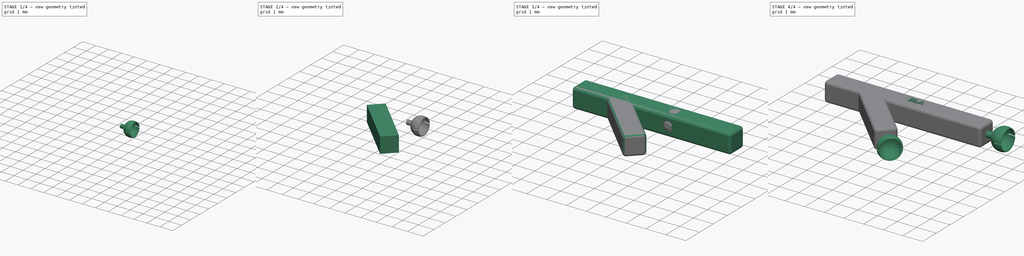
[diagram: build sequence overview — one tinted view per stage of 4, left to right]
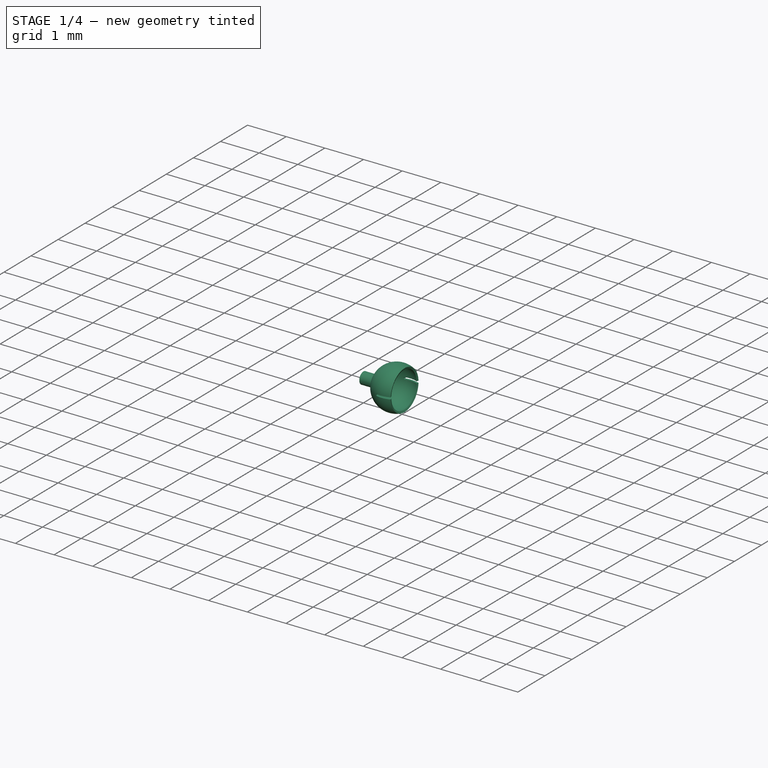
[diagram: stage 1 of 4 — iso view after this stage's code; geometry added in this stage tinted green]
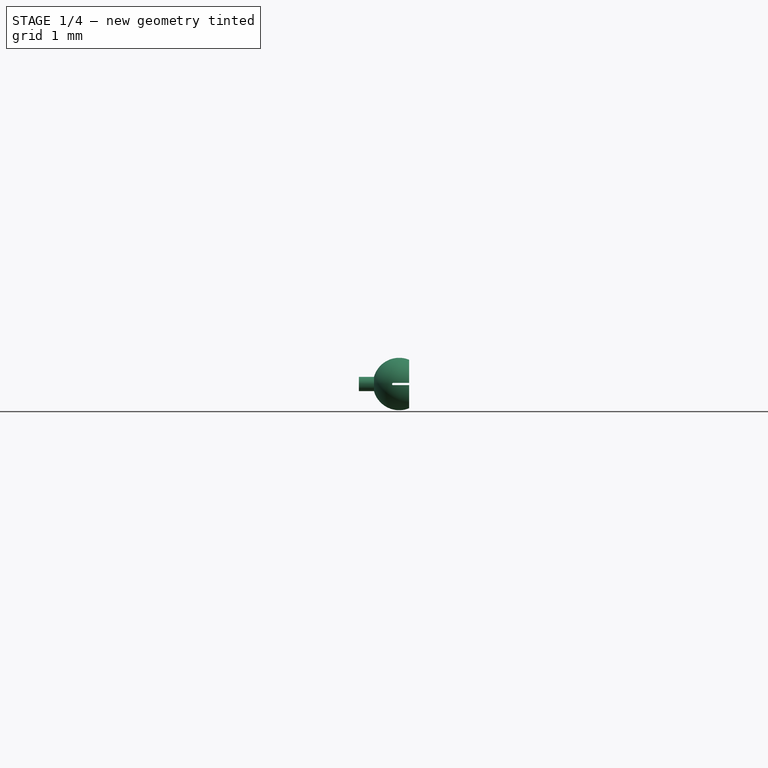
[diagram: stage 1 of 4 — front view after this stage's code; geometry added in this stage tinted green]
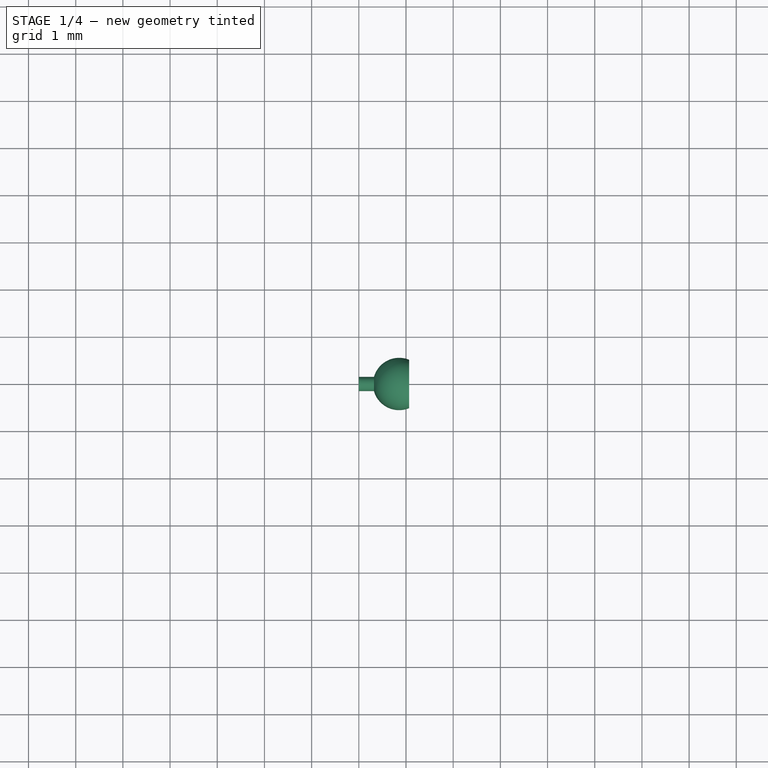
[diagram: stage 1 of 4 — top view after this stage's code; geometry added in this stage tinted green]
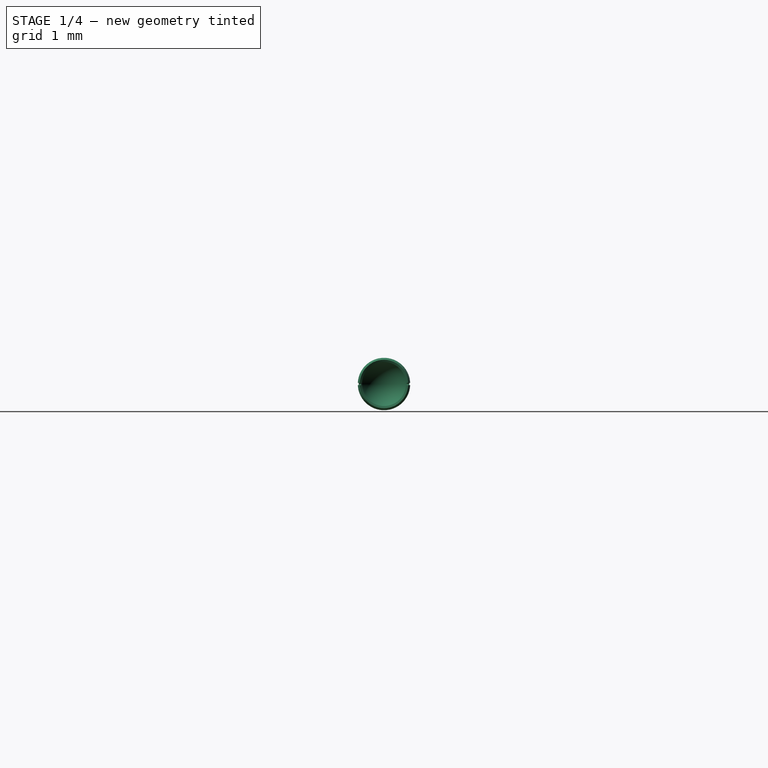
[diagram: stage 1 of 4 — right view after this stage's code; geometry added in this stage tinted green]
FCSTD DOCUMENT  (FreeCAD 0.20R29177 (Git))
Label: sla_new
License: All rights reserved
LicenseURL: http://en.wikipedia.org/wiki/All_rights_reserved
objects: PartDesign::Body×6, Sketcher::SketchObject×5, PartDesign::Pad×4, PartDesign::FeatureBase×3, PartDesign::Fillet×2, Spreadsheet::Sheet×1, PartDesign::Line×1, PartDesign::Revolution×1, PartDesign::Pocket×1, Part::MultiFuse×1, Part::Part2DObjectPython×1
note: 33 computed .brp shape members not serialized (recipe doc carries the construction recipe); baked Part::Feature solids carry a one-line shape summary decoded from their .brp

FEATURE [PartDesign::Body] Body001  label="AngledBeamBody"
  Group = -> [Sketch001,Pad001,Fillet001]
  Origin = -> Origin001
  Tip = -> Fillet001
FEATURE [Sketcher::SketchObject] Sketch002  label="BallJointConnSketch"
  FullyConstrained = true
  MapMode = 5
  Placement = pos=(0,0,0) rot=(0.57735,0.57735,0.57735;2.0944rad)
  Support = -> [YZ_Plane002]
  expr: Constraints[1] = Spreadsheet.BallJointCupConnDiam
  sketch-geometry (1):
    g0: Circle CenterX=0 CenterY=0 CenterZ=0 NormalX=0 NormalY=0 NormalZ=1 AngleXU=0 Radius=0.15
  constraints (2):
    c: Coincident(g0,g-1)
    c: Diameter(g0) = 0.3
FEATURE [Sketcher::SketchObject] Sketch003  label="BallJointCupSketch"
  FullyConstrained = true
  MapMode = 5
  Placement = pos=(0,0,0) rot=(1,0,0;1.5708rad)
  Support = -> [XZ_Plane002]
  expr: Constraints[10] = Spreadsheet.BallJointCupInnerDiam
  expr: Constraints[20] = Spreadsheet.BallJointCupOuterDiam * 0.5
  expr: Constraints[21] = 0.5 * Spreadsheet.BallJointCupCutoutAngle
  expr: Constraints[4] = Spreadsheet.BallJointCupConnLength
  expr: Constraints[5] = 0.5 * Spreadsheet.BallJointCupOuterDiam
  sketch-geometry (8):
    g0: LineSegment StartX=0 StartY=3e-16 StartZ=0 EndX=0.3 EndY=3e-16 EndZ=0
    g1: LineSegment StartX=0.3 StartY=3e-16 StartZ=0 EndX=0.855 EndY=3e-16 EndZ=0
    g2: ArcOfCircle CenterX=0.855 CenterY=3e-16 CenterZ=0 NormalX=0 NormalY=0 NormalZ=1 AngleXU=0 Radius=0.555 StartAngle=1.1781 EndAngle=3.14159
    g3: ArcOfCircle CenterX=0.855 CenterY=3e-16 CenterZ=0 NormalX=0 NormalY=0 NormalZ=1 AngleXU=0 Radius=0.505 StartAngle=1.1781 EndAngle=3.14159
    g4: LineSegment StartX=1.04826 StartY=0.466559 StartZ=0 EndX=1.06739 EndY=0.512753 EndZ=0
    g5: LineSegment StartX=0.3 StartY=3e-16 StartZ=0 EndX=0.35 EndY=4e-16 EndZ=0
    g6: LineSegment StartX=0.855 StartY=3e-16 StartZ=0 EndX=1.04826 EndY=0.466559 EndZ=0
    g7: LineSegment StartX=0.855 StartY=3e-16 StartZ=0 EndX=1.41 EndY=3e-16 EndZ=0
  constraints (22):
    c: Horizontal(g0)
    c: Coincident(g0,g1)
    c: Horizontal(g1)
    c: Coincident(g0,g-1)
    c: DistanceX(g0,g0) = 0.3
    c: DistanceX(g1,g1) = 0.555
    c: Coincident(g2,g1)
    c: Coincident(g2,g0)
    c: Coincident(g3,g2)
    c: PointOnObject(g3,g1)
    c: Diameter(g3) = 1.01
    c: Coincident(g5,g2)
    c: Coincident(g5,g3)
    c: Coincident(g4,g3)
    c: Coincident(g2,g4)
    c: Coincident(g2,g6)
    c: Coincident(g6,g3)
    c: Parallel(g6,g4)
    c: Horizontal(g7)
    c: Coincident(g7,g2)
    c: DistanceX(g7,g7) = 0.555
    c: Angle(g7,g6) = 1.1781
FEATURE [PartDesign::Pad] Pad002  label="BallJointCupConnPad"
  Direction = (1,-2e-16,3e-16)
  Length = 0.325
  Length2 = 10
  Placement = pos=(0,0,0) rot=(0.57735,0.57735,0.57735;2.0944rad)
  Profile = -> Sketch002
  ReferenceAxis = -> Sketch002 [N_Axis]
  Type = 0
  expr: Length = Spreadsheet.BallJointCupConnPadLength
FEATURE [PartDesign::Line] DatumLine  label="BallJointCupRevolveDatumLine"
  AttacherType = Attacher::AttachEngineLine
  Length = 20
  MapMode = 29
  Placement = pos=(0,0,-1e-16) rot=(0.57735,0.57735,0.57735;2.0944rad)
  ResizeMode = 0
  Support = -> [Sketch003]
FEATURE [PartDesign::Revolution] Revolution  label="BallJointCupRevolution"
  Angle = 360
  Axis = (1,0,0)
  Base = (0,0,0)
  BaseFeature = -> Pad002
  Placement = pos=(0,0,0) rot=(0.57735,0.57735,0.57735;2.0944rad)
  Profile = -> Sketch003
  ReferenceAxis = -> X_Axis002
  Reversed = true
FEATURE [Sketcher::SketchObject] Sketch004  label="BallJointCupSlitSketch"
  FullyConstrained = true
  MapMode = 5
  Placement = pos=(0,0,0) rot=(1,0,0;1.5708rad)
  Support = -> [XZ_Plane002]
  expr: Constraints[30] = Spreadsheet.BallJointCupSlitWidth
  expr: Constraints[31] = Spreadsheet.BallJointCupOuterDiam
  expr: Constraints[34] = Spreadsheet.BallJointCupSlitDepth
  expr: Constraints[4] = Spreadsheet.BallJointCupConnLength
  expr: Constraints[5] = Spreadsheet.BallJointCupOuterDiam * 0.5
  sketch-geometry (13):
    g0: LineSegment StartX=0 StartY=0 StartZ=0 EndX=0.3 EndY=0 EndZ=0
    g1: LineSegment StartX=0.3 StartY=0 StartZ=0 EndX=0.855 EndY=0 EndZ=0
    g2: LineSegment StartX=0.855 StartY=0.025 StartZ=0 EndX=1.965 EndY=0.025 EndZ=0
    g3: LineSegment StartX=1.965 StartY=0.025 StartZ=0 EndX=1.965 EndY=-0.025 EndZ=0
    g4: LineSegment StartX=1.965 StartY=-0.025 StartZ=0 EndX=0.855 EndY=-0.025 EndZ=0
    g5: LineSegment StartX=0.73 StartY=0.025 StartZ=0 EndX=0.855 EndY=0.025 EndZ=0
    g6: LineSegment StartX=0.73 StartY=-0.025 StartZ=0 EndX=0.855 EndY=-0.025 EndZ=0
    g7: LineSegment StartX=0.855 StartY=0.025 StartZ=0 EndX=0.855 EndY=0 EndZ=0
    g8: LineSegment StartX=0.855 StartY=0 StartZ=0 EndX=0.855 EndY=-0.025 EndZ=0
    g9: LineSegment StartX=0.73 StartY=0.025 StartZ=0 EndX=0.73 EndY=5.171e-13 EndZ=0
    g10: LineSegment StartX=0.73 StartY=5.171e-13 StartZ=0 EndX=0.73 EndY=-0.025 EndZ=0
    g11: ArcOfCircle CenterX=0.73 CenterY=5.171e-13 CenterZ=0 NormalX=0 NormalY=0 NormalZ=1 AngleXU=0 Radius=0.025 StartAngle=1.5708 EndAngle=4.71239
    g12: GeomPoint X=0.755 Y=0 Z=0
  constraints (35):
    c: Horizontal(g0)
    c: Horizontal(g1)
    c: Coincident(g0,g-1)
    c: Coincident(g0,g1)
    c: DistanceX(g0,g0) = 0.3
    c: DistanceX(g1,g1) = 0.555
    c: Horizontal(g2)
    c: Coincident(g2,g3)
    c: Vertical(g3)
    c: Coincident(g3,g4)
    c: Horizontal(g4)
    c: Horizontal(g5)
    c: Horizontal(g6)
    c: Coincident(g5,g2)
    c: Coincident(g6,g4)
    c: Vertical(g7)
    c: Coincident(g7,g8)
    c: Vertical(g8)
    c: Equal(g7,g8)
    c: Coincident(g8,g4)
    c: Coincident(g7,g1)
    c: Coincident(g7,g2)
    c: Vertical(g9)
    c: Coincident(g9,g10)
    c: Vertical(g10)
    c: Coincident(g10,g6)
    c: Coincident(g9,g5)
    c: Coincident(g11,g9)
    c: Coincident(g11,g5)
    c: Coincident(g11,g6)
    c: DistanceY(g3,g3) = 0.05
    c: DistanceX(g2,g2) = 1.11
    c: PointOnObject(g12,g1)
    c: PointOnObject(g12,g11)
    c: DistanceX(g12,g1) = 0.1
FEATURE [PartDesign::Pocket] Pocket  label="BallJointCupSlitPocket"
  BaseFeature = -> Revolution
  Direction = (0,1,2e-16)
  Length = 5
  Length2 = 5
  Midplane = true
  Placement = pos=(0,0,0) rot=(0.57735,0.57735,0.57735;2.0944rad)
  Profile = -> Sketch004
  ReferenceAxis = -> Sketch004 [N_Axis]
  Type = 1
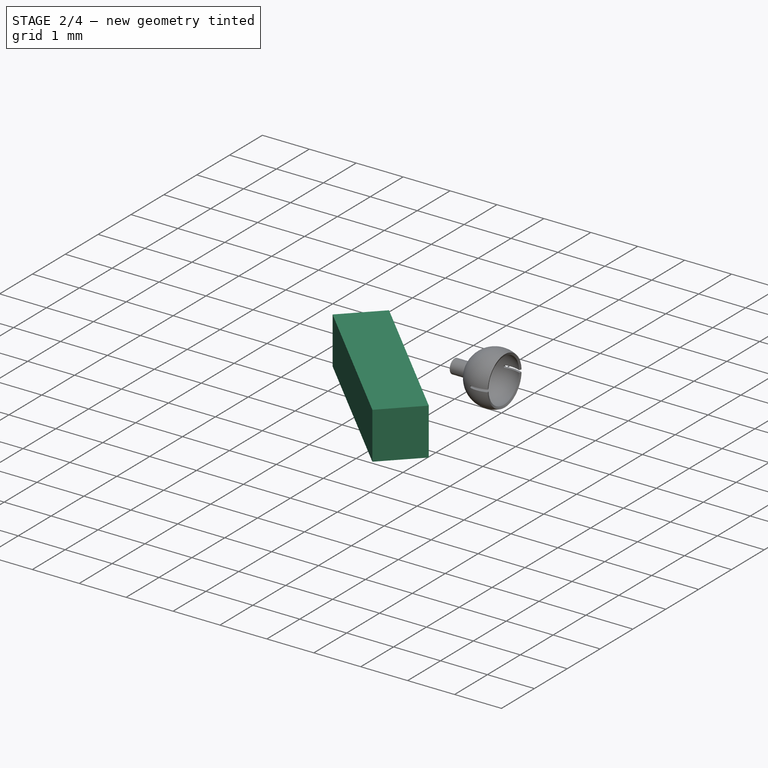
[diagram: stage 2 of 4 — iso view after this stage's code; geometry added in this stage tinted green]
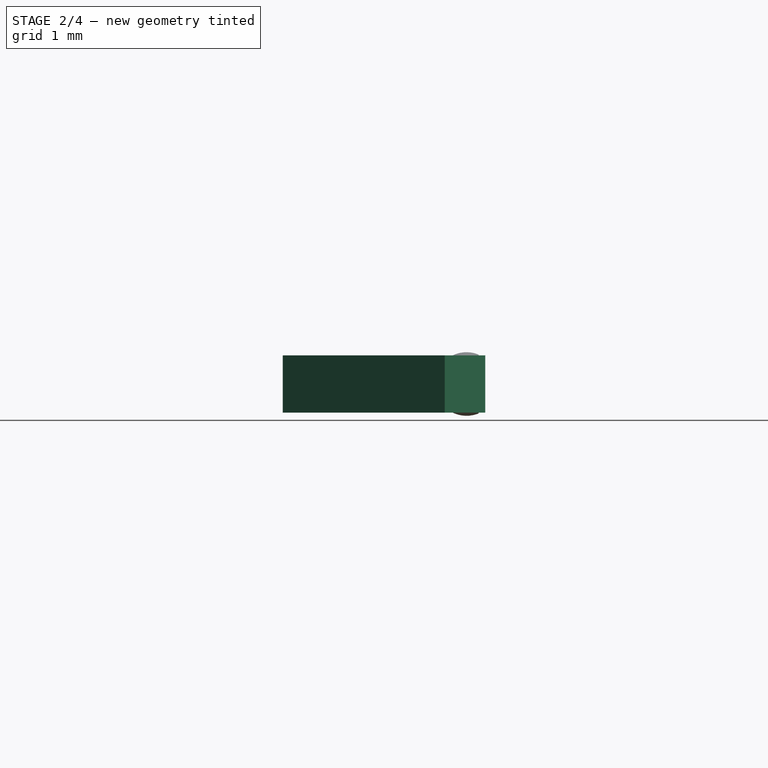
[diagram: stage 2 of 4 — front view after this stage's code; geometry added in this stage tinted green]
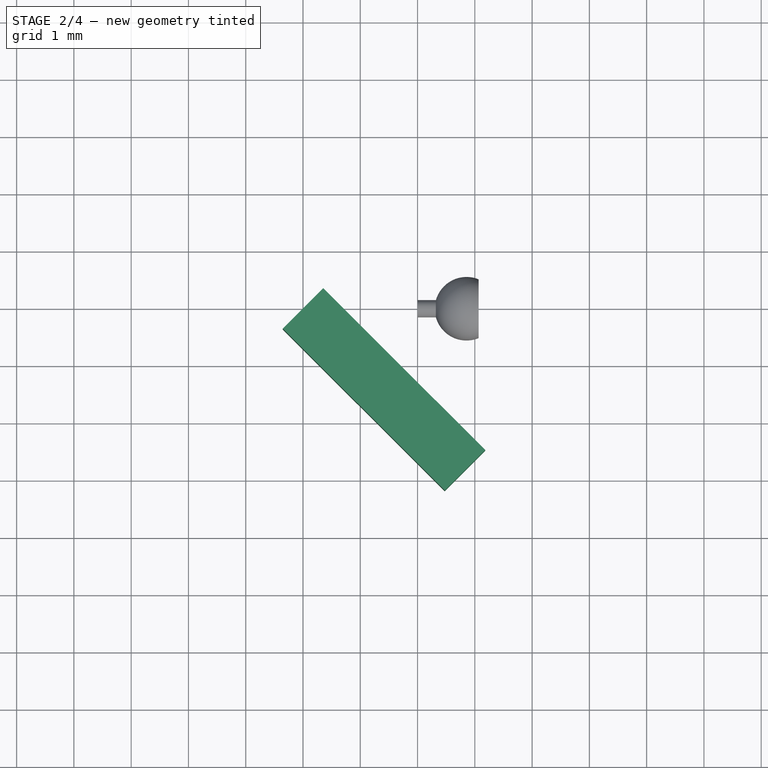
[diagram: stage 2 of 4 — top view after this stage's code; geometry added in this stage tinted green]
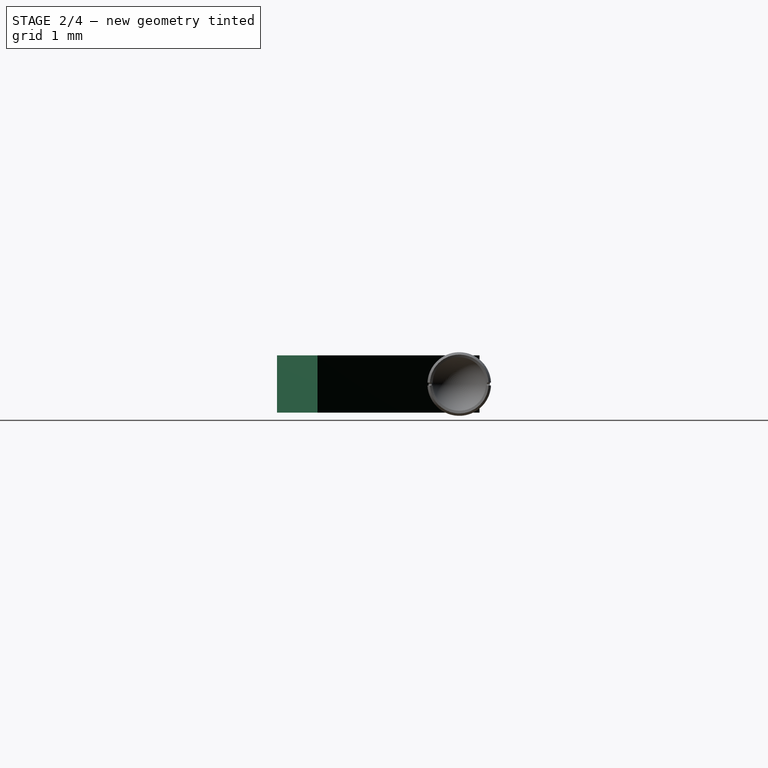
[diagram: stage 2 of 4 — right view after this stage's code; geometry added in this stage tinted green]
FEATURE [PartDesign::Body] Body  label="MainBeamBody"
  Group = -> [Sketch,Pad,Fillet]
  Origin = -> Origin
  Tip = -> Fillet
FEATURE [Sketcher::SketchObject] Sketch001  label="AngledBeamSketch"
  FullyConstrained = true
  MapMode = 5
  Support = -> [XY_Plane001]
  expr: Constraints[19] = Spreadsheet.AngledBeamOffsetAngle
  expr: Constraints[2] = Spreadsheet.AngledBeamOffsetX
  expr: Constraints[7] = Spreadsheet.BeamWidth
  expr: Constraints[8] = Spreadsheet.AngledBeamLength
  sketch-geometry (7):
    g0: LineSegment StartX=-2 StartY=0 StartZ=0 EndX=0 EndY=0 EndZ=0
    g1: LineSegment StartX=1.18198 StartY=-2.47487 StartZ=0 EndX=-1.64645 EndY=0.353553 EndZ=0
    g2: LineSegment StartX=-2.35355 StartY=-0.353553 StartZ=0 EndX=0.474874 EndY=-3.18198 EndZ=0
    g3: LineSegment StartX=0.474874 StartY=-3.18198 StartZ=0 EndX=1.18198 EndY=-2.47487 EndZ=0
    g4: LineSegment StartX=-2.35355 StartY=-0.353553 StartZ=0 EndX=-2 EndY=0 EndZ=0
    g5: LineSegment StartX=-2 StartY=0 StartZ=0 EndX=-1.64645 EndY=0.353553 EndZ=0
    g6: LineSegment StartX=-2 StartY=0 StartZ=0 EndX=0.828427 EndY=-2.82843 EndZ=0
  constraints (20):
    c: Horizontal(g0)
    c: Coincident(g0,g-1)
    c: DistanceX(g0,g0) = 2
    c: Coincident(g2,g3)
    c: Coincident(g1,g3)
    c: Parallel(g2,g1)
    c: Perpendicular(g3,g1)
    c: Distance(g3) = 1
    c: Distance(g2) = 4
    c: Coincident(g4,g5)
    c: Equal(g4,g5)
    c: Parallel(g4,g5)
    c: Coincident(g5,g1)
    c: Coincident(g4,g2)
    c: Perpendicular(g1,g5)
    c: Coincident(g0,g4)
    c: Coincident(g4,g6)
    c: PointOnObject(g6,g3)
    c: Parallel(g6,g1)
    c: Angle(g6,g0) = 0.785398
FEATURE [PartDesign::Pad] Pad001  label="AngledBeamPad"
  Direction = (0,0,1)
  Length = 1
  Length2 = 10
  Midplane = true
  Profile = -> Sketch001
  ReferenceAxis = -> Sketch001 [N_Axis]
  Type = 0
  expr: Length = Spreadsheet.BeamHeight
FEATURE [PartDesign::Body] Body002  label="BallJointCupRefBody"
  Group = -> [Sketch002,Sketch003,Pad002,DatumLine,Revolution,Sketch004,Pocket]
  Origin = -> Origin002
  Tip = -> Pocket
FEATURE [PartDesign::FeatureBase] Clone
  BaseFeature = -> Body002
FEATURE [PartDesign::Body] Body003  label="BallJointCupClone1Body"
  BaseFeature = -> Body002
  Group = -> [Clone]
  Origin = -> Origin003
  Placement = pos=(4,0,0) rot=(0,0,1;0rad)
  Tip = -> Clone
  expr: .Placement.Base.x = Spreadsheet.BallJointCupClone1OffsetX
FEATURE [PartDesign::FeatureBase] Clone001
  BaseFeature = -> Body002
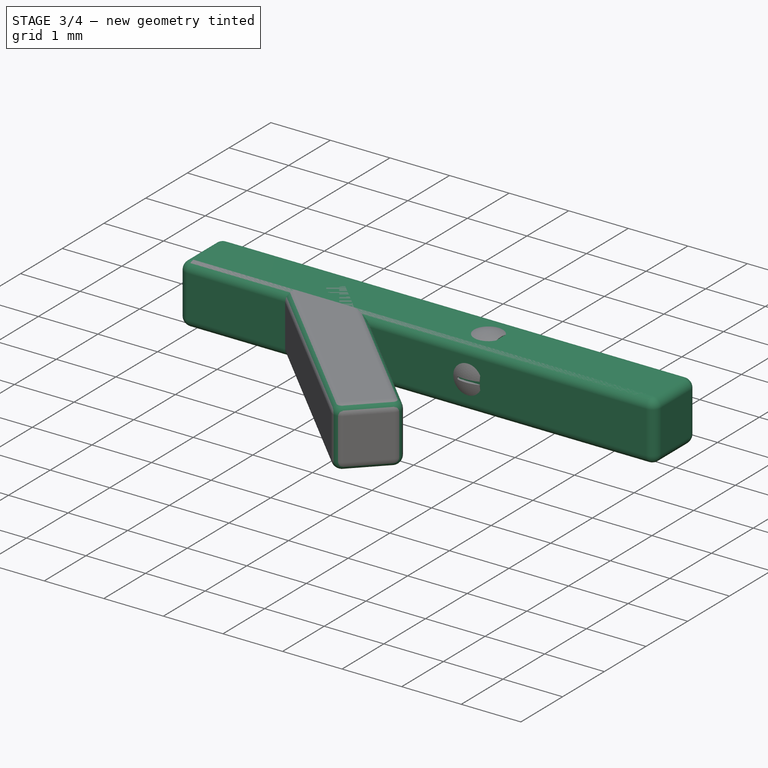
[diagram: stage 3 of 4 — iso view after this stage's code; geometry added in this stage tinted green]
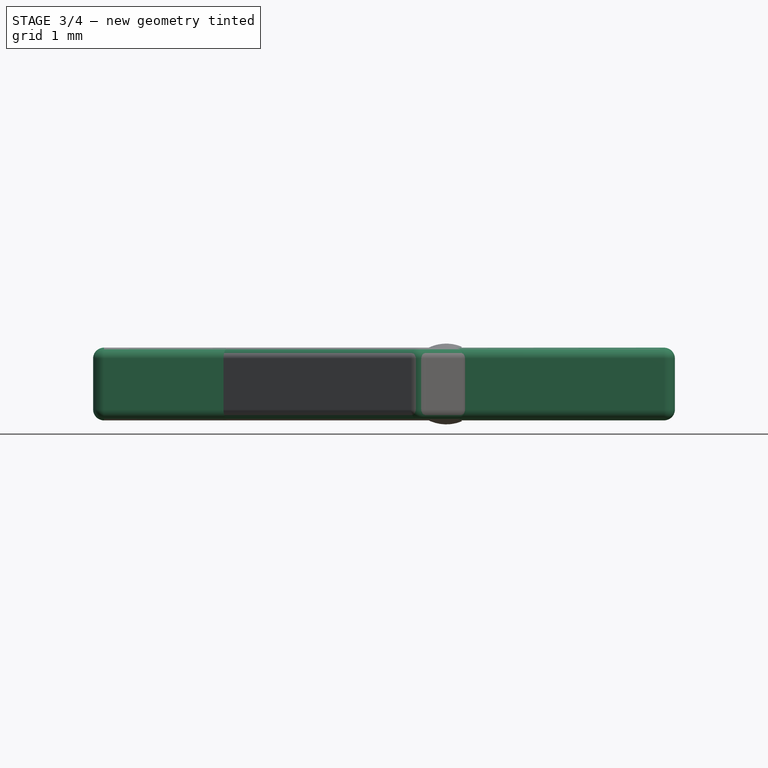
[diagram: stage 3 of 4 — front view after this stage's code; geometry added in this stage tinted green]
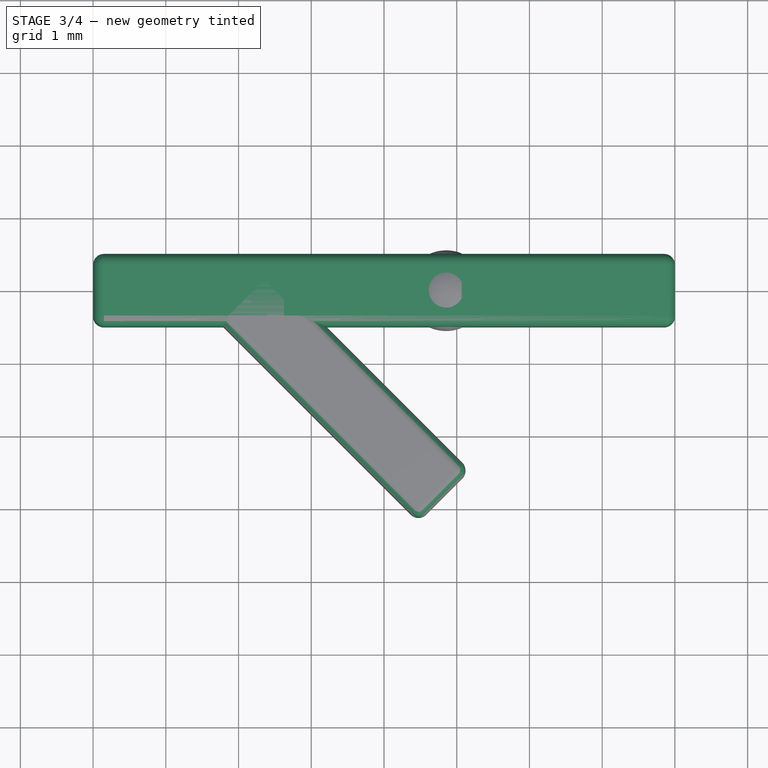
[diagram: stage 3 of 4 — top view after this stage's code; geometry added in this stage tinted green]
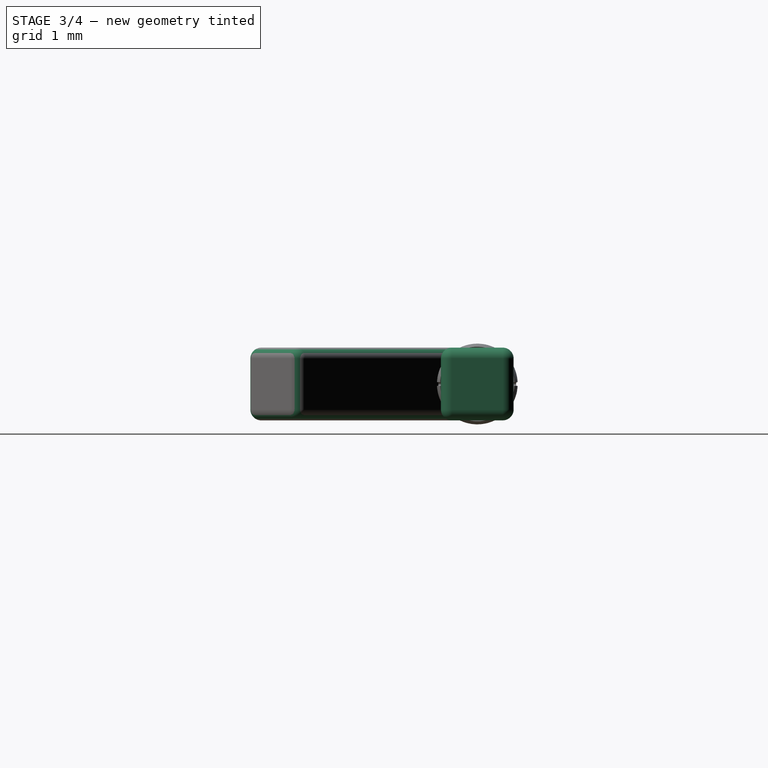
[diagram: stage 3 of 4 — right view after this stage's code; geometry added in this stage tinted green]
FEATURE [Spreadsheet::Sheet] Spreadsheet
  cells = A2=Design Parameters; A3=RefLength; B3(RefLength)==1mm; A4=BeamWidth; B4(BeamWidth)==1 * RefLength; A5=BeamHeight; B5(BeamHeight)==1 * RefLength; A6=MainBeamLength; B6(MainBeamLength)==8 * RefLength; A7=AngledBeamLength; B7(AngledBeamLength)==4 * RefLength; A8=AngledBeamOffsetX; B8(AngledBeamOffsetX)==0.25 * MainBeamLength; A9=AngledBeamOffsetAngle; B9(AngledBeamOffsetAngle)==45deg; A10=EdgeFilletRadius; B10(EdgeFilletRadius)==0.15 * RefLength; A11=BallJointDiam; B11(BallJointDiam)==1 * RefLength; A12=BallJointDiamMargin; B12(BallJointDiamMargin)==0.005 * BallJointDiam; A13=BallJointCupThickness; B13(BallJointCupThickness)==0.05 * RefLength; A14=BallJointCupInnerDiam; B14(BallJointCupInnerDiam)==BallJointDiam + 2 * BallJointDiamMargin; A15=BallJointCupOuterDiam; B15(BallJointCupOuterDiam)==BallJointCupInnerDiam + 2 * BallJointCupThickness; A16=BallJointCupConnLength; B16(BallJointCupConnLength)==0.3 * RefLength; A17=BallJointCupConnDiam; B17(BallJointCupConnDiam)==0.3 * RefLength; A18=BallJointCupConnPadMargin; B18(BallJointCupConnPadMargin)==0.1 * RefLength; A19=BallJointCupConnPadLength; B19(BallJointCupConnPadLength)==BallJointCupConnLength + 0.5 * BallJointCupThickness; A20=BallJointCupCutoutAngle; B20(BallJointCupCutoutAngle)==135deg; A21=BallJointCupSlitWidth; B21(BallJointCupSlitWidth)==0.05 * RefLength; A22=BallJointCupSlitDepth; B22(BallJointCupSlitDepth)==0.1 * RefLength; C22=Depth past midline; A23=BallJointCupClone1OffsetX; B23(BallJointCupClone1OffsetX)==0.5 * MainBeamLength; A24=BallJointCupClone2OffsetX; B24(BallJointCupClone2OffsetX)==-AngledBeamOffsetX + AngledBeamLength * cos(AngledBeamOffsetAngle); A25=BallJointCupClone2OffsetY; B25(BallJointCupClone2OffsetY)==-AngledBeamLength * sin(AngledBeamOffsetAngle); A26=LabelSize; B26(LabelSize)==0.15 * RefLength; A27=LabelString; B27(LabelString)=SLA; A28=LabelPadHeight; B28(LabelPadHeight)==0.05 * RefLength; A29=LabelYPos; B29(LabelYPos)==-0.1 * BeamWidth
FEATURE [Sketcher::SketchObject] Sketch  label="MainBeamSketch"
  FullyConstrained = true
  MapMode = 5
  Support = -> [XY_Plane]
  expr: Constraints[10] = Spreadsheet.BeamWidth
  expr: Constraints[9] = Spreadsheet.MainBeamLength
  sketch-geometry (4):
    g0: LineSegment StartX=-4 StartY=0.5 StartZ=0 EndX=4 EndY=0.5 EndZ=0
    g1: LineSegment StartX=4 StartY=0.5 StartZ=0 EndX=4 EndY=-0.5 EndZ=0
    g2: LineSegment StartX=4 StartY=-0.5 StartZ=0 EndX=-4 EndY=-0.5 EndZ=0
    g3: LineSegment StartX=-4 StartY=-0.5 StartZ=0 EndX=-4 EndY=0.5 EndZ=0
  constraints (11):
    c: Coincident(g0,g1)
    c: Coincident(g1,g2)
    c: Coincident(g2,g3)
    c: Coincident(g3,g0)
    c: Horizontal(g0)
    c: Horizontal(g2)
    c: Vertical(g1)
    c: Vertical(g3)
    c: Symmetric(g0,g1,g-1)
    c: DistanceX(g0,g0) = 8
    c: DistanceY(g1,g1) = 1
FEATURE [PartDesign::Pad] Pad  label="MainBeamPad"
  Direction = (0,0,1)
  Length = 1
  Length2 = 10
  Midplane = true
  Profile = -> Sketch
  ReferenceAxis = -> Sketch [N_Axis]
  Type = 0
  expr: Length = Spreadsheet.BeamHeight
FEATURE [PartDesign::Fillet] Fillet  label="MainBeamFillet"
  Base = -> Pad [Edge10]
  BaseFeature = -> Pad
  Radius = 0.15
  SupportTransform = false
  UseAllEdges = true
  expr: Radius = Spreadsheet.EdgeFilletRadius
FEATURE [PartDesign::Fillet] Fillet001  label="AngledBeamFillet"
  Base = -> Pad001 [Edge4]
  BaseFeature = -> Pad001
  Radius = 0.15
  SupportTransform = false
  UseAllEdges = true
  expr: Radius = Spreadsheet.EdgeFilletRadius
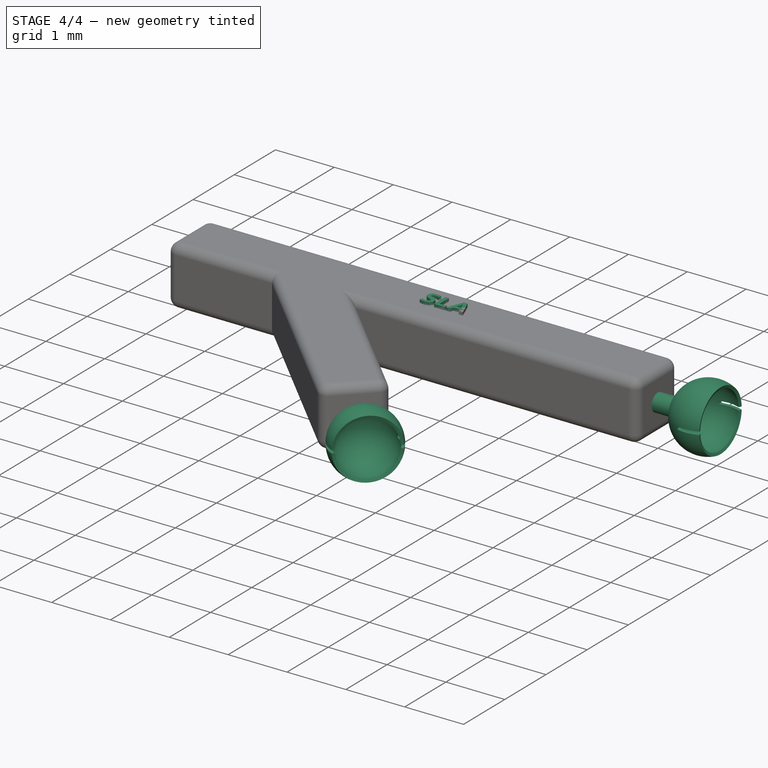
[diagram: stage 4 of 4 — iso view after this stage's code; geometry added in this stage tinted green]
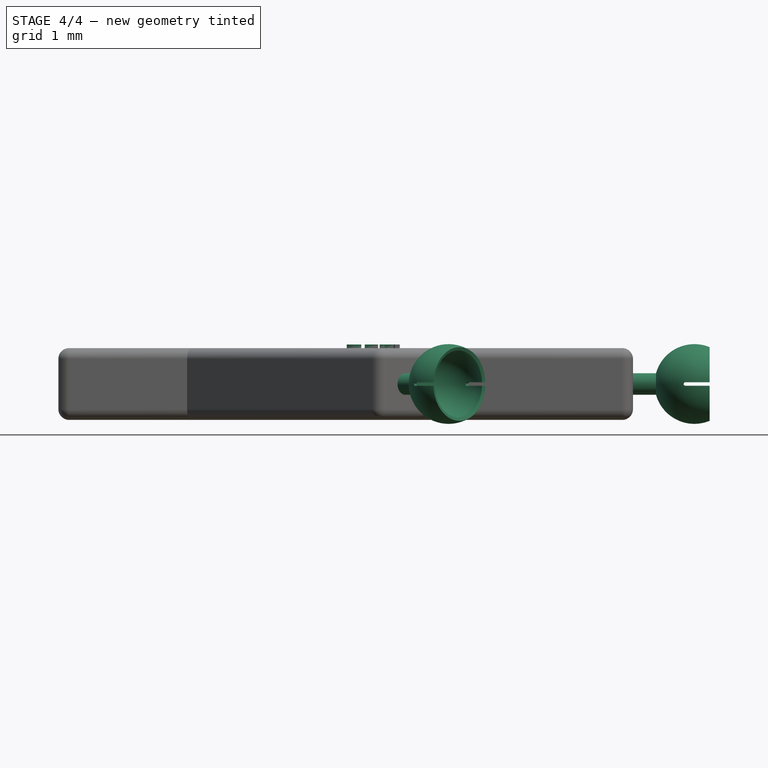
[diagram: stage 4 of 4 — front view after this stage's code; geometry added in this stage tinted green]
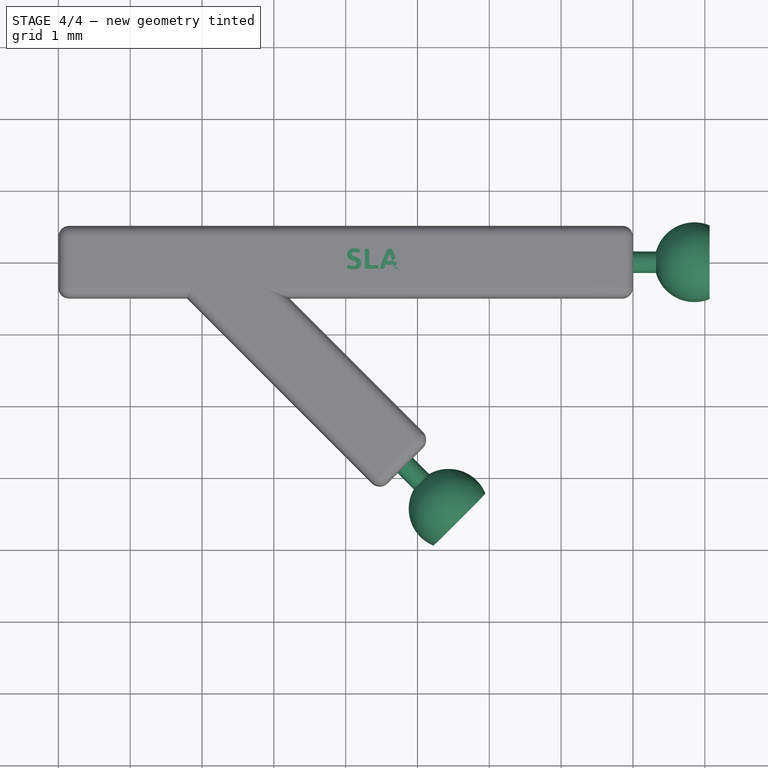
[diagram: stage 4 of 4 — top view after this stage's code; geometry added in this stage tinted green]
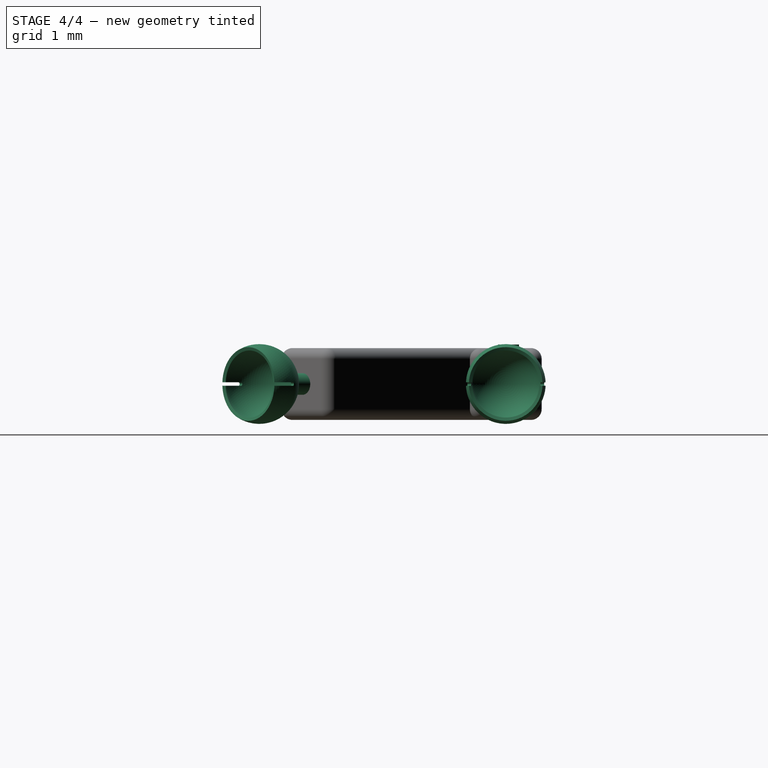
[diagram: stage 4 of 4 — right view after this stage's code; geometry added in this stage tinted green]
FEATURE [PartDesign::Body] Body004  label="BallJointCupClone2Body"
  BaseFeature = -> Body002
  Group = -> [Clone001]
  Origin = -> Origin004
  Placement = pos=(0.828427,-2.82843,0) rot=(0,0,-1;0.785398rad)
  Tip = -> Clone001
  expr: .Placement.Base.x = Spreadsheet.BallJointCupClone2OffsetX
  expr: .Placement.Base.y = Spreadsheet.BallJointCupClone2OffsetY
  expr: .Placement.Rotation.Angle = Spreadsheet.AngledBeamOffsetAngle
FEATURE [Part::MultiFuse] Fusion
  Shapes = -> [Body,Body001,Body003,Body004]
FEATURE [PartDesign::FeatureBase] BaseFeature
  BaseFeature = -> Fusion
FEATURE [Part::Part2DObjectPython] ShapeString  label="LabelShapeString"  # Draft 2D object (typed FeaturePython)
  FontFile = <userpath>/work/cad/wing_hinge_cad_models/rev2/font/Ubuntu-B.ttf
  MakeFace = true
  Placement = pos=(0,-0.1,0.5) rot=(0,0,1;0rad)
  Size = 0.15
  String = SLA
  Tracking = 0
  expr: Size = Spreadsheet.LabelSize
  expr: String = Spreadsheet.LabelString
FEATURE [PartDesign::Pad] Pad003  label="LabelPad"
  BaseFeature = -> BaseFeature
  Direction = (0,0,1)
  Length = 0.05
  Length2 = 10
  Profile = -> ShapeString
  ReferenceAxis = -> ShapeString [N_Axis]
  Type = 0
  expr: Length = Spreadsheet.LabelPadHeight
FEATURE [PartDesign::Body] Body005  label="FusionBody"
  BaseFeature = -> Fusion
  Group = -> [BaseFeature,ShapeString,Pad003]
  Origin = -> Origin005
  Tip = -> Pad003
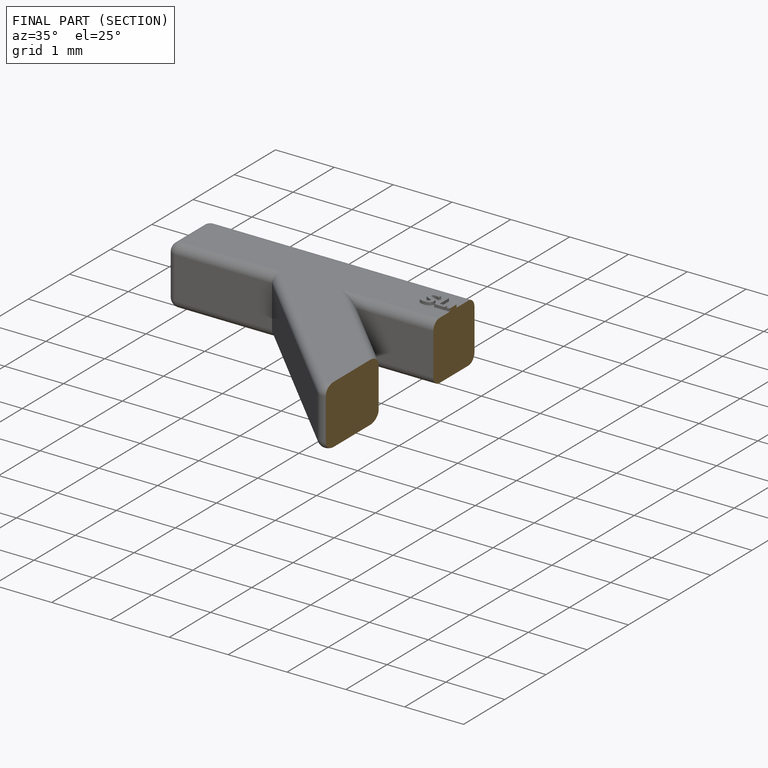
[diagram: finished part — half-section view (interior)]
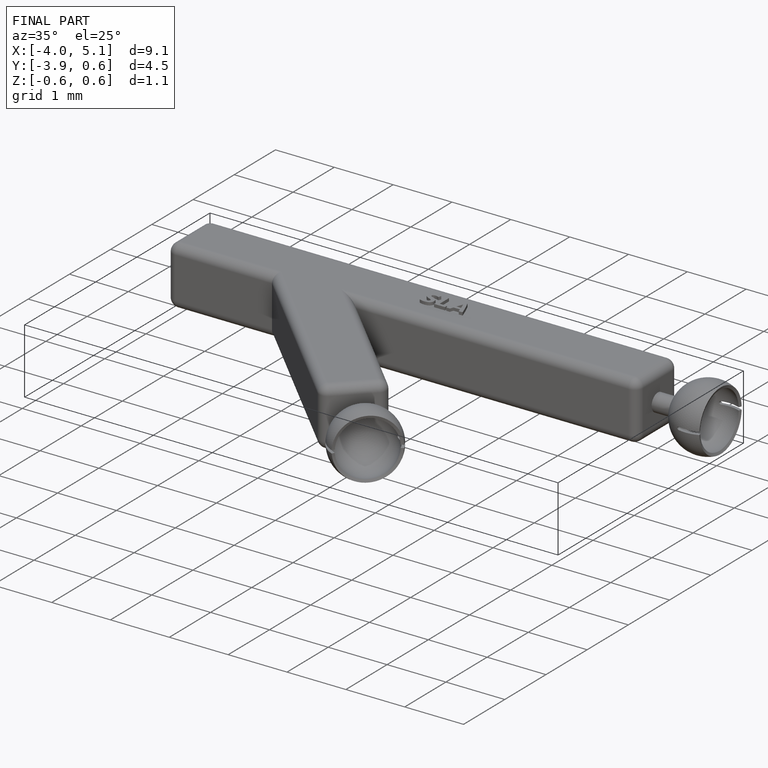
[diagram: finished part — iso view with bounding-box wireframe]
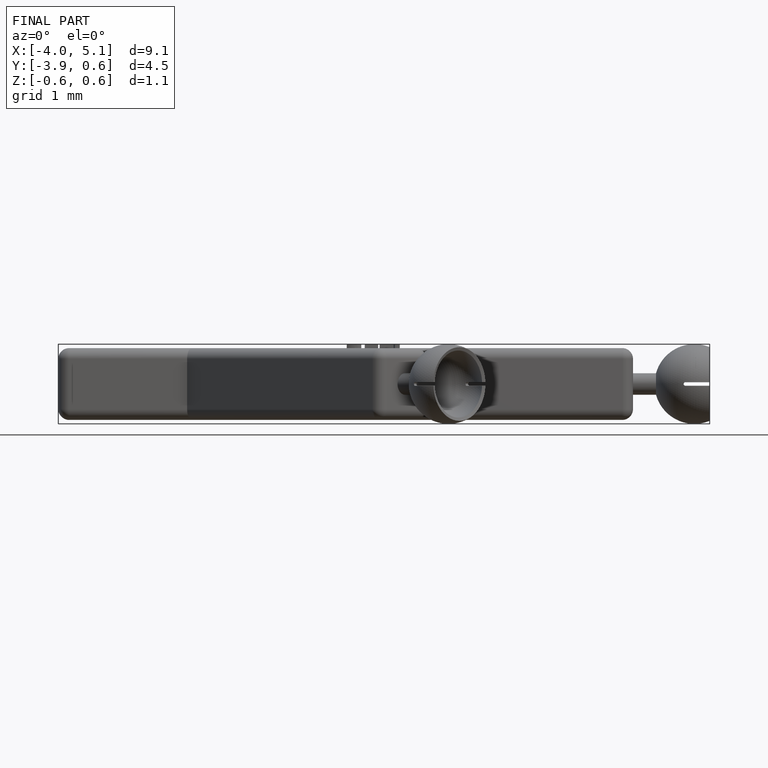
[diagram: finished part — front view with bounding-box wireframe]
